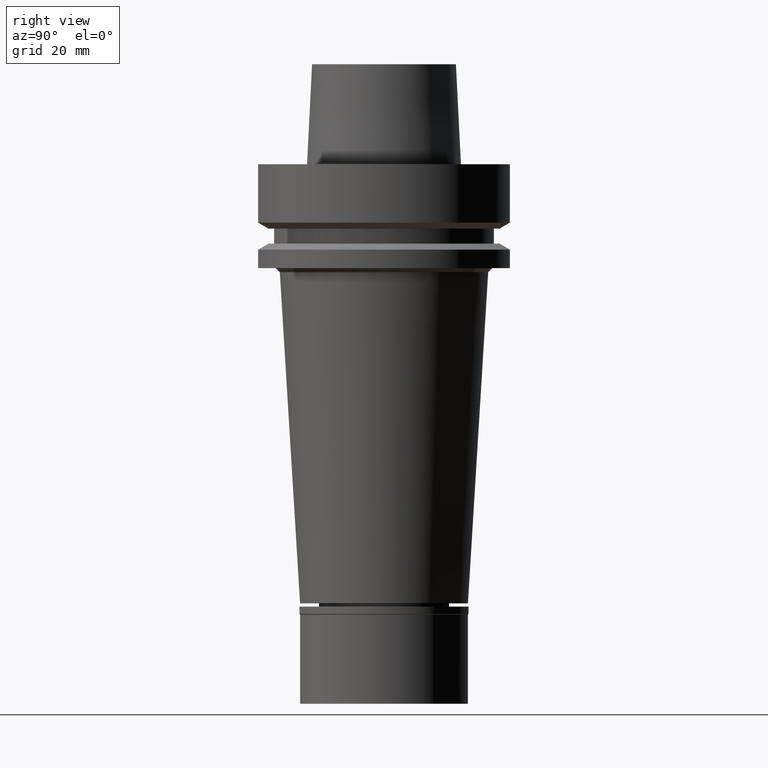
[diagram: clean part render]
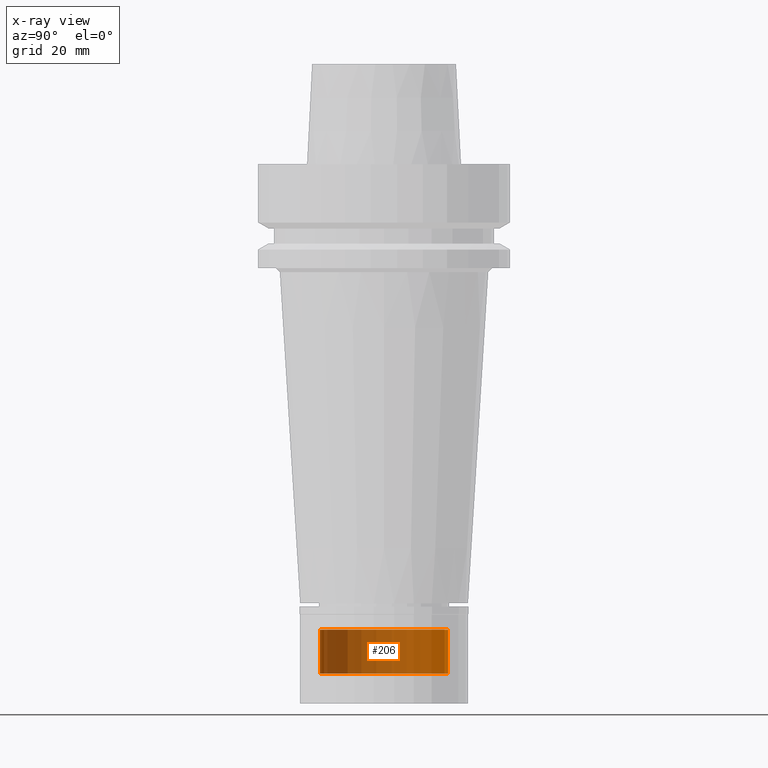
[diagram: x-ray — body ghosted, one internal face saturated and labeled with its STEP entity id]
A machine part, right view, then the same camera in x-ray: the body is ghosted and one INTERNAL B-rep face — a face not visible from any outside direction — is saturated and labeled: STEP entity #206.
In plain terms, the highlighted cylindrical surface (partial cylindrical patch) has radius 16 mm, axis along (0, 0, 1).
Its self-contained STEP definition (entity closure, byte-faithful):
#11 = FACE_OUTER_BOUND ( 'NONE', #1707, .T. ) ;
#14 = AXIS2_PLACEMENT_3D ( 'NONE', #217, #424, #894 ) ;
#76 = LINE ( 'NONE', #102, #230 ) ;
#90 = DIRECTION ( 'NONE',  ( 0.0000000000000000000, 0.0000000000000000000, -1.000000000000000000 ) ) ;
#102 = CARTESIAN_POINT ( 'NONE',  ( 0.0000000000000000000, -16.00000000000000000, -116.5000000000000000 ) ) ;
#206 = ADVANCED_FACE ( 'NONE', ( #11 ), #2005, .T. ) ;
#217 = CARTESIAN_POINT ( 'NONE',  ( 0.0000000000000000000, 0.0000000000000000000, -135.1250000000000000 ) ) ;
#230 = VECTOR ( 'NONE', #90, 1000.000000000000000 ) ;
#323 = EDGE_CURVE ( 'NONE', #959, #443, #1034, .T. ) ;
#343 = DIRECTION ( 'NONE',  ( 0.0000000000000000000, -1.000000000000000000, 0.0000000000000000000 ) ) ;
#410 = CARTESIAN_POINT ( 'NONE',  ( 0.0000000000000000000, 0.0000000000000000000, -127.5000000000000000 ) ) ;
#424 = DIRECTION ( 'NONE',  ( 0.0000000000000000000, 0.0000000000000000000, 1.000000000000000000 ) ) ;
#443 = VERTEX_POINT ( 'NONE', #2663 ) ;
#551 = DIRECTION ( 'NONE',  ( 0.0000000000000000000, 0.0000000000000000000, -1.000000000000000000 ) ) ;
#724 = EDGE_CURVE ( 'NONE', #842, #959, #981, .T. ) ;
#767 = DIRECTION ( 'NONE',  ( 0.0000000000000000000, 0.0000000000000000000, -1.000000000000000000 ) ) ;
#782 = CARTESIAN_POINT ( 'NONE',  ( 0.0000000000000000000, 16.00000000000000000, -116.5000000000000000 ) ) ;
#842 = VERTEX_POINT ( 'NONE', #1723 ) ;
#894 = DIRECTION ( 'NONE',  ( 0.0000000000000000000, 1.000000000000000000, 0.0000000000000000000 ) ) ;
#920 = AXIS2_PLACEMENT_3D ( 'NONE', #410, #2608, #2120 ) ;
#959 = VERTEX_POINT ( 'NONE', #1703 ) ;
#981 = CIRCLE ( 'NONE', #2046, 16.00000000000000000 ) ;
#1034 = LINE ( 'NONE', #782, #1629 ) ;
#1230 = VERTEX_POINT ( 'NONE', #2025 ) ;
#1348 = ORIENTED_EDGE ( 'NONE', *, *, #1560, .T. ) ;
#1375 = ORIENTED_EDGE ( 'NONE', *, *, #2780, .F. ) ;
#1390 = ORIENTED_EDGE ( 'NONE', *, *, #724, .T. ) ;
#1399 = CARTESIAN_POINT ( 'NONE',  ( 0.0000000000000000000, 0.0000000000000000000, -116.5000000000000000 ) ) ;
#1560 = EDGE_CURVE ( 'NONE', #443, #1230, #1617, .T. ) ;
#1617 = CIRCLE ( 'NONE', #920, 16.00000000000000000 ) ;
#1629 = VECTOR ( 'NONE', #767, 1000.000000000000000 ) ;
#1703 = CARTESIAN_POINT ( 'NONE',  ( 0.0000000000000000000, 16.00000000000000000, -116.5000000000000000 ) ) ;
#1707 = EDGE_LOOP ( 'NONE', ( #1348, #1375, #1390, #2621 ) ) ;
#1723 = CARTESIAN_POINT ( 'NONE',  ( 0.0000000000000000000, -16.00000000000000000, -116.5000000000000000 ) ) ;
#2005 = CYLINDRICAL_SURFACE ( 'NONE', #14, 16.00000000000000000 ) ;
#2025 = CARTESIAN_POINT ( 'NONE',  ( 0.0000000000000000000, -16.00000000000000000, -127.5000000000000000 ) ) ;
#2046 = AXIS2_PLACEMENT_3D ( 'NONE', #1399, #551, #343 ) ;
#2120 = DIRECTION ( 'NONE',  ( 0.0000000000000000000, 1.000000000000000000, 0.0000000000000000000 ) ) ;
#2608 = DIRECTION ( 'NONE',  ( 0.0000000000000000000, 0.0000000000000000000, 1.000000000000000000 ) ) ;
#2621 = ORIENTED_EDGE ( 'NONE', *, *, #323, .T. ) ;
#2663 = CARTESIAN_POINT ( 'NONE',  ( 0.0000000000000000000, 16.00000000000000000, -127.5000000000000000 ) ) ;
#2780 = EDGE_CURVE ( 'NONE', #842, #1230, #76, .T. ) ;